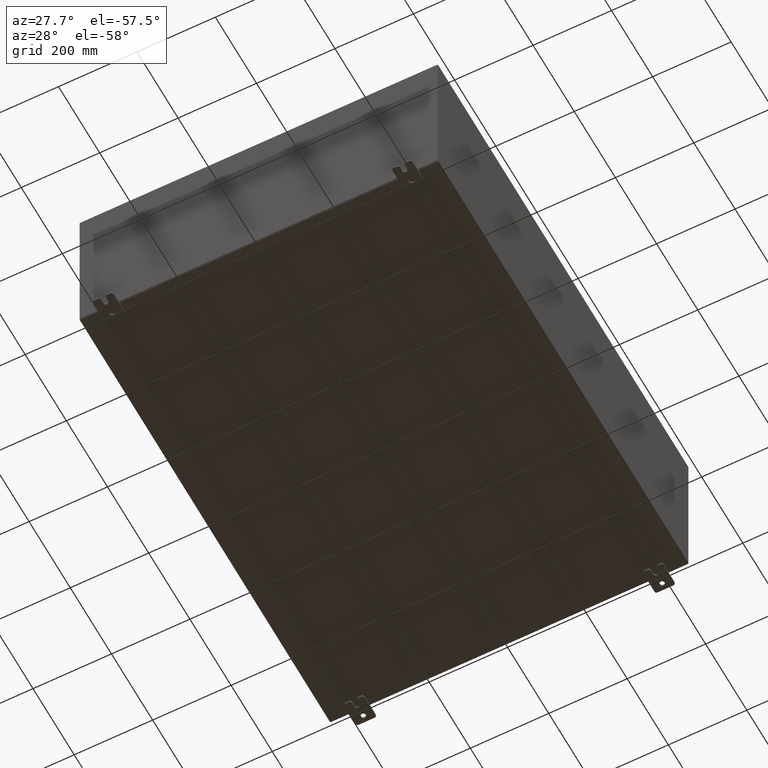
[diagram: clean part render]
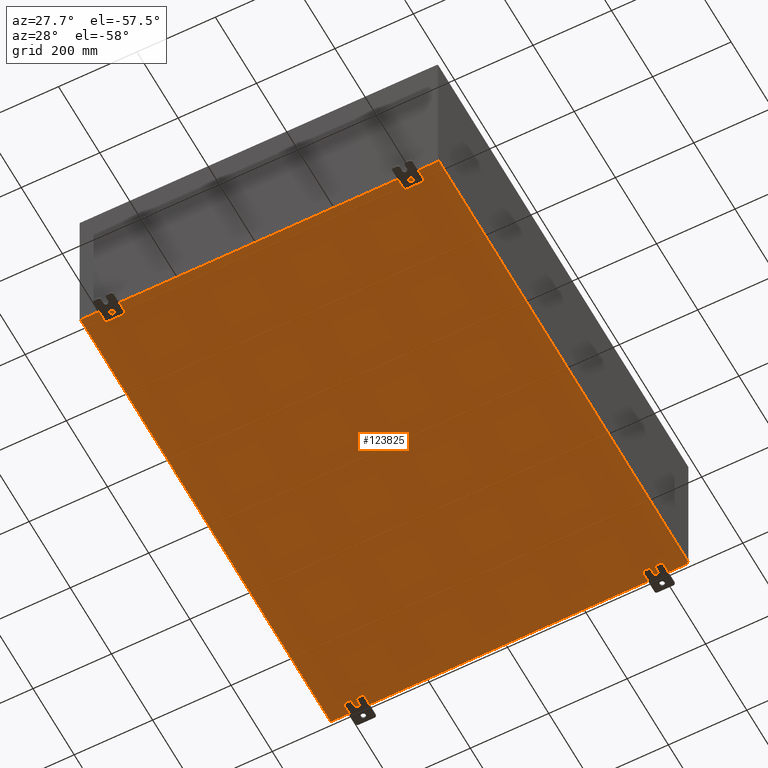
[diagram: same view with one face highlighted and labeled with its STEP entity id]
A machine part, auxiliary view. The second image highlights one B-rep face of the part: STEP entity #123825.
In plain terms, the highlighted planar face has unit normal (0, 0, -1).
Its self-contained STEP definition (entity closure, byte-faithful):
#3228 = CARTESIAN_POINT ( 'NONE',  ( 0.0000000000000000000, 0.0000000000000000000, -0.07470000000000000300 ) ) ;
#8326 = EDGE_CURVE ( 'NONE', #20000, #91580, #23926, .T. ) ;
#8993 = CARTESIAN_POINT ( 'NONE',  ( -18.00000000000000400, 23.92530000000000000, -0.07470000000000000300 ) ) ;
#9089 = CARTESIAN_POINT ( 'NONE',  ( -18.00000000000000400, -23.92530000000000400, -0.07470000000000000300 ) ) ;
#17004 = ORIENTED_EDGE ( 'NONE', *, *, #8326, .F. ) ;
#20000 = VERTEX_POINT ( 'NONE', #25208 ) ;
#23926 = LINE ( 'NONE', #8993, #48238 ) ;
#25208 = CARTESIAN_POINT ( 'NONE',  ( 17.91229999999999500, 23.92529999999998600, -0.07469999999999688000 ) ) ;
#28706 = CARTESIAN_POINT ( 'NONE',  ( -17.91230000000000500, -23.92529999999998900, -0.07469999999999994700 ) ) ;
#29053 = CARTESIAN_POINT ( 'NONE',  ( -17.91230000000000500, 23.92529999999998900, -0.07470000000000000300 ) ) ;
#29486 = DIRECTION ( 'NONE',  ( 1.000000000000000000, 1.214154663850783700E-016, 0.0000000000000000000 ) ) ;
#32483 = VECTOR ( 'NONE', #46446, 39.37007874015748100 ) ;
#36883 = ORIENTED_EDGE ( 'NONE', *, *, #105165, .T. ) ;
#42212 = DIRECTION ( 'NONE',  ( -1.000000000000000000, 0.0000000000000000000, -0.0000000000000000000 ) ) ;
#46446 = DIRECTION ( 'NONE',  ( -0.0000000000000000000, -1.000000000000000000, -8.208677865577646300E-017 ) ) ;
#48238 = VECTOR ( 'NONE', #50625, 39.37007874015748100 ) ;
#50625 = DIRECTION ( 'NONE',  ( -1.000000000000000000, -0.0000000000000000000, -0.0000000000000000000 ) ) ;
#52882 = ORIENTED_EDGE ( 'NONE', *, *, #58062, .T. ) ;
#53688 = ORIENTED_EDGE ( 'NONE', *, *, #85724, .F. ) ;
#58062 = EDGE_CURVE ( 'NONE', #97705, #91580, #110844, .T. ) ;
#58861 = VECTOR ( 'NONE', #90777, 39.37007874015748100 ) ;
#64130 = EDGE_LOOP ( 'NONE', ( #53688, #52882, #17004, #36883 ) ) ;
#68673 = LINE ( 'NONE', #9089, #117434 ) ;
#70704 = CARTESIAN_POINT ( 'NONE',  ( -17.91230000000000500, -23.92529999999998600, -0.07469999999999994700 ) ) ;
#85724 = EDGE_CURVE ( 'NONE', #97705, #108963, #68673, .T. ) ;
#86516 = CARTESIAN_POINT ( 'NONE',  ( 17.91229999999999500, -23.92530000000000000, -0.07470000000000000300 ) ) ;
#90777 = DIRECTION ( 'NONE',  ( -0.0000000000000000000, 1.000000000000000000, -0.0000000000000000000 ) ) ;
#91580 = VERTEX_POINT ( 'NONE', #29053 ) ;
#96536 = DIRECTION ( 'NONE',  ( 0.0000000000000000000, 0.0000000000000000000, -1.000000000000000000 ) ) ;
#97705 = VERTEX_POINT ( 'NONE', #70704 ) ;
#105165 = EDGE_CURVE ( 'NONE', #20000, #108963, #113840, .T. ) ;
#108017 = FACE_OUTER_BOUND ( 'NONE', #64130, .T. ) ;
#108590 = CARTESIAN_POINT ( 'NONE',  ( 17.91229999999999500, 23.92529999999998900, -0.07469999999999688000 ) ) ;
#108963 = VERTEX_POINT ( 'NONE', #86516 ) ;
#110460 = AXIS2_PLACEMENT_3D ( 'NONE', #3228, #96536, #42212 ) ;
#110844 = LINE ( 'NONE', #28706, #58861 ) ;
#113840 = LINE ( 'NONE', #108590, #32483 ) ;
#117036 = PLANE ( 'NONE',  #110460 ) ;
#117434 = VECTOR ( 'NONE', #29486, 39.37007874015748100 ) ;
#123825 = ADVANCED_FACE ( 'NONE', ( #108017 ), #117036, .T. ) ;